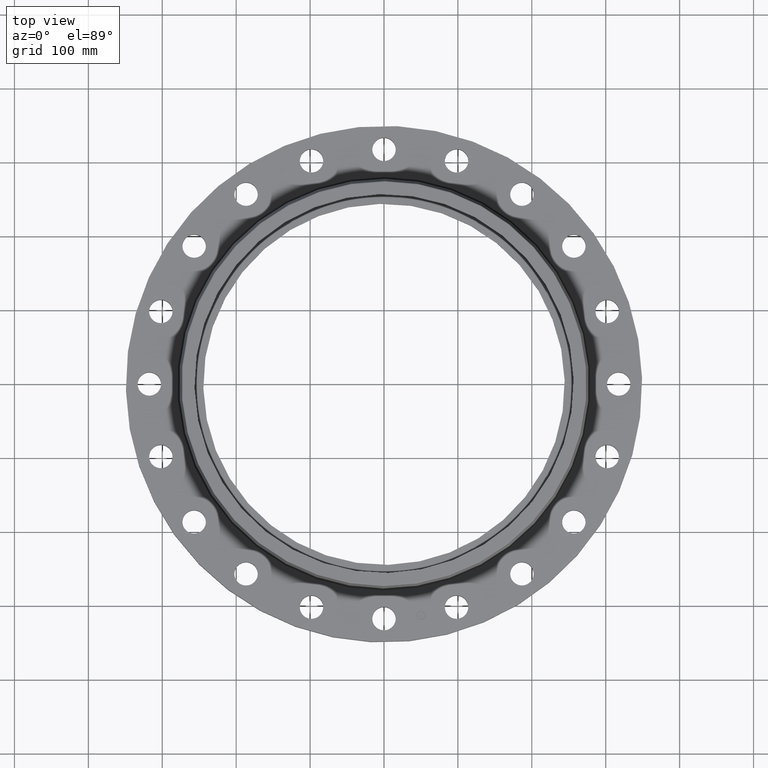
[diagram: clean part render]
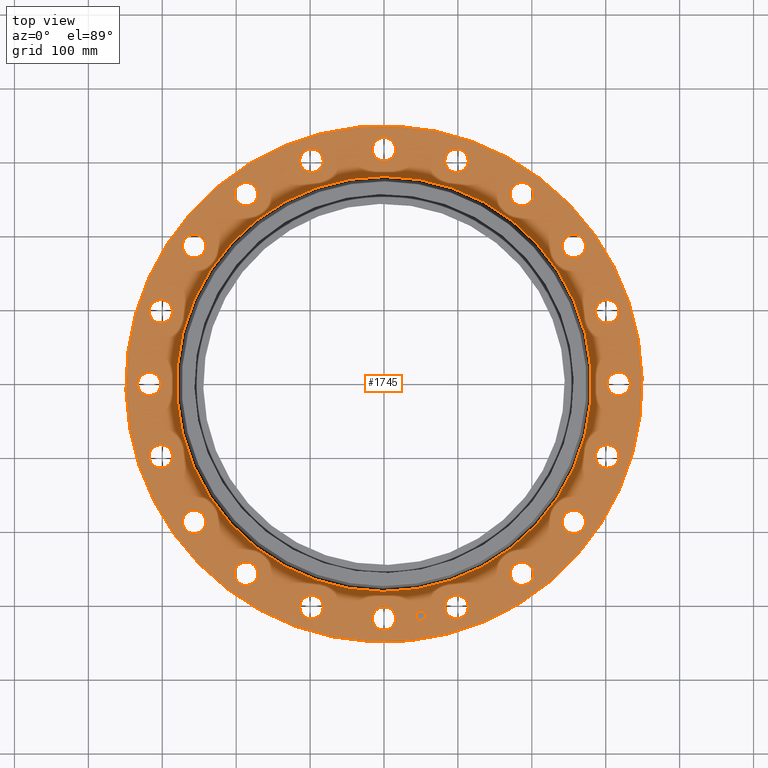
[diagram: same view with one face highlighted and labeled with its STEP entity id]
A machine part, top view. The second image highlights one B-rep face of the part: STEP entity #1745.
In plain terms, the highlighted planar face has unit normal (0, 0, -1).
Its self-contained STEP definition (entity closure, byte-faithful):
#545=AXIS2_PLACEMENT_3D('Circle Axis2P3D',#543,#544,$) ;
#564=AXIS2_PLACEMENT_3D('Circle Axis2P3D',#562,#563,$) ;
#581=AXIS2_PLACEMENT_3D('Circle Axis2P3D',#579,#580,$) ;
#616=AXIS2_PLACEMENT_3D('Circle Axis2P3D',#614,#615,$) ;
#766=AXIS2_PLACEMENT_3D('Circle Axis2P3D',#764,#765,$) ;
#778=AXIS2_PLACEMENT_3D('Circle Axis2P3D',#776,#777,$) ;
#809=AXIS2_PLACEMENT_3D('Circle Axis2P3D',#807,#808,$) ;
#821=AXIS2_PLACEMENT_3D('Circle Axis2P3D',#819,#820,$) ;
#852=AXIS2_PLACEMENT_3D('Circle Axis2P3D',#850,#851,$) ;
#864=AXIS2_PLACEMENT_3D('Circle Axis2P3D',#862,#863,$) ;
#895=AXIS2_PLACEMENT_3D('Circle Axis2P3D',#893,#894,$) ;
#907=AXIS2_PLACEMENT_3D('Circle Axis2P3D',#905,#906,$) ;
#938=AXIS2_PLACEMENT_3D('Circle Axis2P3D',#936,#937,$) ;
#950=AXIS2_PLACEMENT_3D('Circle Axis2P3D',#948,#949,$) ;
#981=AXIS2_PLACEMENT_3D('Circle Axis2P3D',#979,#980,$) ;
#993=AXIS2_PLACEMENT_3D('Circle Axis2P3D',#991,#992,$) ;
#1024=AXIS2_PLACEMENT_3D('Circle Axis2P3D',#1022,#1023,$) ;
#1036=AXIS2_PLACEMENT_3D('Circle Axis2P3D',#1034,#1035,$) ;
#1067=AXIS2_PLACEMENT_3D('Circle Axis2P3D',#1065,#1066,$) ;
#1079=AXIS2_PLACEMENT_3D('Circle Axis2P3D',#1077,#1078,$) ;
#1110=AXIS2_PLACEMENT_3D('Circle Axis2P3D',#1108,#1109,$) ;
#1122=AXIS2_PLACEMENT_3D('Circle Axis2P3D',#1120,#1121,$) ;
#1153=AXIS2_PLACEMENT_3D('Circle Axis2P3D',#1151,#1152,$) ;
#1165=AXIS2_PLACEMENT_3D('Circle Axis2P3D',#1163,#1164,$) ;
#1196=AXIS2_PLACEMENT_3D('Circle Axis2P3D',#1194,#1195,$) ;
#1208=AXIS2_PLACEMENT_3D('Circle Axis2P3D',#1206,#1207,$) ;
#1239=AXIS2_PLACEMENT_3D('Circle Axis2P3D',#1237,#1238,$) ;
#1251=AXIS2_PLACEMENT_3D('Circle Axis2P3D',#1249,#1250,$) ;
#1282=AXIS2_PLACEMENT_3D('Circle Axis2P3D',#1280,#1281,$) ;
#1294=AXIS2_PLACEMENT_3D('Circle Axis2P3D',#1292,#1293,$) ;
#1325=AXIS2_PLACEMENT_3D('Circle Axis2P3D',#1323,#1324,$) ;
#1337=AXIS2_PLACEMENT_3D('Circle Axis2P3D',#1335,#1336,$) ;
#1368=AXIS2_PLACEMENT_3D('Circle Axis2P3D',#1366,#1367,$) ;
#1380=AXIS2_PLACEMENT_3D('Circle Axis2P3D',#1378,#1379,$) ;
#1411=AXIS2_PLACEMENT_3D('Circle Axis2P3D',#1409,#1410,$) ;
#1423=AXIS2_PLACEMENT_3D('Circle Axis2P3D',#1421,#1422,$) ;
#1454=AXIS2_PLACEMENT_3D('Circle Axis2P3D',#1452,#1453,$) ;
#1466=AXIS2_PLACEMENT_3D('Circle Axis2P3D',#1464,#1465,$) ;
#1497=AXIS2_PLACEMENT_3D('Circle Axis2P3D',#1495,#1496,$) ;
#1509=AXIS2_PLACEMENT_3D('Circle Axis2P3D',#1507,#1508,$) ;
#1540=AXIS2_PLACEMENT_3D('Circle Axis2P3D',#1538,#1539,$) ;
#1552=AXIS2_PLACEMENT_3D('Circle Axis2P3D',#1550,#1551,$) ;
#1583=AXIS2_PLACEMENT_3D('Circle Axis2P3D',#1581,#1582,$) ;
#1595=AXIS2_PLACEMENT_3D('Circle Axis2P3D',#1593,#1594,$) ;
#1637=AXIS2_PLACEMENT_3D('Plane Axis2P3D',#1634,#1635,#1636) ;
#1729=AXIS2_PLACEMENT_3D('Circle Axis2P3D',#1727,#1728,$) ;
#1738=AXIS2_PLACEMENT_3D('Circle Axis2P3D',#1736,#1737,$) ;
#540=CARTESIAN_POINT('Vertex',(-6.59210115583,-12.066760226,1.62000000001)) ;
#543=CARTESIAN_POINT('Axis2P3D Location',(0.,0.,1.62000000001)) ;
#547=CARTESIAN_POINT('Vertex',(6.59210115583,12.066760226,1.62000000001)) ;
#562=CARTESIAN_POINT('Axis2P3D Location',(0.,0.,1.62000000001)) ;
#579=CARTESIAN_POINT('Axis2P3D Location',(0.,0.,1.62000000001)) ;
#583=CARTESIAN_POINT('Vertex',(5.29781807222,9.69759093307,1.62000000001)) ;
#585=CARTESIAN_POINT('Vertex',(-5.29781807222,-9.69759093307,1.62000000001)) ;
#614=CARTESIAN_POINT('Axis2P3D Location',(0.,0.,1.62000000001)) ;
#754=CARTESIAN_POINT('Vertex',(12.5024447369,3.74722939409,1.62000000001)) ;
#761=CARTESIAN_POINT('Vertex',(11.2739681706,3.97819546531,1.62000000001)) ;
#764=CARTESIAN_POINT('Axis2P3D Location',(11.8882064537,3.8627124297,1.62000000001)) ;
#776=CARTESIAN_POINT('Axis2P3D Location',(11.8882064537,3.8627124297,1.62000000001)) ;
#797=CARTESIAN_POINT('Vertex',(10.732573972,7.42729482824,1.62000000001)) ;
#804=CARTESIAN_POINT('Vertex',(9.49285088741,7.26733647913,1.62000000001)) ;
#807=CARTESIAN_POINT('Axis2P3D Location',(10.1127124297,7.34731565369,1.62000000001)) ;
#819=CARTESIAN_POINT('Axis2P3D Location',(10.1127124297,7.34731565369,1.62000000001)) ;
#840=CARTESIAN_POINT('Vertex',(7.91212408857,10.3803248956,1.62000000001)) ;
#847=CARTESIAN_POINT('Vertex',(6.7825072188,9.84509996387,1.62000000001)) ;
#850=CARTESIAN_POINT('Axis2P3D Location',(7.34731565369,10.1127124297,1.62000000001)) ;
#862=CARTESIAN_POINT('Axis2P3D Location',(7.34731565369,10.1127124297,1.62000000001)) ;
#883=CARTESIAN_POINT('Vertex',(4.3171803723,12.3172564382,1.62000000001)) ;
#890=CARTESIAN_POINT('Vertex',(3.4082444871,11.4591564693,1.62000000001)) ;
#893=CARTESIAN_POINT('Axis2P3D Location',(3.8627124297,11.8882064537,1.62000000001)) ;
#905=CARTESIAN_POINT('Axis2P3D Location',(3.8627124297,11.8882064537,1.62000000001)) ;
#926=CARTESIAN_POINT('Vertex',(0.299640961629,13.0484891012,1.62000000001)) ;
#933=CARTESIAN_POINT('Vertex',(-0.299640961629,11.9515108989,1.62000000001)) ;
#936=CARTESIAN_POINT('Axis2P3D Location',(-1.33984429947E-014,12.5000000001,1.62000000001)) ;
#948=CARTESIAN_POINT('Axis2P3D Location',(-1.33984429947E-014,12.5000000001,1.62000000001)) ;
#969=CARTESIAN_POINT('Vertex',(-3.74722939409,12.5024447369,1.62000000001)) ;
#976=CARTESIAN_POINT('Vertex',(-3.97819546531,11.2739681706,1.62000000001)) ;
#979=CARTESIAN_POINT('Axis2P3D Location',(-3.8627124297,11.8882064537,1.62000000001)) ;
#991=CARTESIAN_POINT('Axis2P3D Location',(-3.8627124297,11.8882064537,1.62000000001)) ;
#1012=CARTESIAN_POINT('Vertex',(-7.42729482824,10.732573972,1.62000000001)) ;
#1019=CARTESIAN_POINT('Vertex',(-7.26733647913,9.49285088741,1.62000000001)) ;
#1022=CARTESIAN_POINT('Axis2P3D Location',(-7.34731565369,10.1127124297,1.62000000001)) ;
#1034=CARTESIAN_POINT('Axis2P3D Location',(-7.34731565369,10.1127124297,1.62000000001)) ;
#1055=CARTESIAN_POINT('Vertex',(-10.3803248956,7.91212408857,1.62000000001)) ;
#1062=CARTESIAN_POINT('Vertex',(-9.84509996387,6.7825072188,1.62000000001)) ;
#1065=CARTESIAN_POINT('Axis2P3D Location',(-10.1127124297,7.34731565369,1.62000000001)) ;
#1077=CARTESIAN_POINT('Axis2P3D Location',(-10.1127124297,7.34731565369,1.62000000001)) ;
#1098=CARTESIAN_POINT('Vertex',(-12.3172564382,4.3171803723,1.62000000001)) ;
#1105=CARTESIAN_POINT('Vertex',(-11.4591564693,3.4082444871,1.62000000001)) ;
#1108=CARTESIAN_POINT('Axis2P3D Location',(-11.8882064537,3.8627124297,1.62000000001)) ;
#1120=CARTESIAN_POINT('Axis2P3D Location',(-11.8882064537,3.8627124297,1.62000000001)) ;
#1141=CARTESIAN_POINT('Vertex',(-13.0484891012,0.299640961629,1.62000000001)) ;
#1148=CARTESIAN_POINT('Vertex',(-11.9515108989,-0.299640961629,1.62000000001)) ;
#1151=CARTESIAN_POINT('Axis2P3D Location',(-12.5000000001,-7.08192362209E-015,1.62000000001)) ;
#1163=CARTESIAN_POINT('Axis2P3D Location',(-12.5000000001,-7.08192362209E-015,1.62000000001)) ;
#1184=CARTESIAN_POINT('Vertex',(-12.5024447369,-3.74722939409,1.62000000001)) ;
#1191=CARTESIAN_POINT('Vertex',(-11.2739681706,-3.97819546531,1.62000000001)) ;
#1194=CARTESIAN_POINT('Axis2P3D Location',(-11.8882064537,-3.8627124297,1.62000000001)) ;
#1206=CARTESIAN_POINT('Axis2P3D Location',(-11.8882064537,-3.8627124297,1.62000000001)) ;
#1227=CARTESIAN_POINT('Vertex',(-10.732573972,-7.42729482824,1.62000000001)) ;
#1234=CARTESIAN_POINT('Vertex',(-9.49285088741,-7.26733647913,1.62000000001)) ;
#1237=CARTESIAN_POINT('Axis2P3D Location',(-10.1127124297,-7.34731565369,1.62000000001)) ;
#1249=CARTESIAN_POINT('Axis2P3D Location',(-10.1127124297,-7.34731565369,1.62000000001)) ;
#1270=CARTESIAN_POINT('Vertex',(-7.91212408857,-10.3803248956,1.62000000001)) ;
#1277=CARTESIAN_POINT('Vertex',(-6.7825072188,-9.84509996387,1.62000000001)) ;
#1280=CARTESIAN_POINT('Axis2P3D Location',(-7.34731565369,-10.1127124297,1.62000000001)) ;
#1292=CARTESIAN_POINT('Axis2P3D Location',(-7.34731565369,-10.1127124297,1.62000000001)) ;
#1313=CARTESIAN_POINT('Vertex',(-4.3171803723,-12.3172564382,1.62000000001)) ;
#1320=CARTESIAN_POINT('Vertex',(-3.4082444871,-11.4591564693,1.62000000001)) ;
#1323=CARTESIAN_POINT('Axis2P3D Location',(-3.8627124297,-11.8882064537,1.62000000001)) ;
#1335=CARTESIAN_POINT('Axis2P3D Location',(-3.8627124297,-11.8882064537,1.62000000001)) ;
#1356=CARTESIAN_POINT('Vertex',(-0.299640961629,-13.0484891012,1.62000000001)) ;
#1363=CARTESIAN_POINT('Vertex',(0.299640961629,-11.9515108989,1.62000000001)) ;
#1366=CARTESIAN_POINT('Axis2P3D Location',(1.30303193463E-015,-12.5000000001,1.62000000001)) ;
#1378=CARTESIAN_POINT('Axis2P3D Location',(1.30303193463E-015,-12.5000000001,1.62000000001)) ;
#1399=CARTESIAN_POINT('Vertex',(3.74722939409,-12.5024447369,1.62000000001)) ;
#1406=CARTESIAN_POINT('Vertex',(3.97819546531,-11.2739681706,1.62000000001)) ;
#1409=CARTESIAN_POINT('Axis2P3D Location',(3.8627124297,-11.8882064537,1.62000000001)) ;
#1421=CARTESIAN_POINT('Axis2P3D Location',(3.8627124297,-11.8882064537,1.62000000001)) ;
#1442=CARTESIAN_POINT('Vertex',(7.42729482824,-10.732573972,1.62000000001)) ;
#1449=CARTESIAN_POINT('Vertex',(7.26733647913,-9.49285088741,1.62000000001)) ;
#1452=CARTESIAN_POINT('Axis2P3D Location',(7.34731565369,-10.1127124297,1.62000000001)) ;
#1464=CARTESIAN_POINT('Axis2P3D Location',(7.34731565369,-10.1127124297,1.62000000001)) ;
#1485=CARTESIAN_POINT('Vertex',(10.3803248956,-7.91212408857,1.62000000001)) ;
#1492=CARTESIAN_POINT('Vertex',(9.84509996387,-6.7825072188,1.62000000001)) ;
#1495=CARTESIAN_POINT('Axis2P3D Location',(10.1127124297,-7.34731565369,1.62000000001)) ;
#1507=CARTESIAN_POINT('Axis2P3D Location',(10.1127124297,-7.34731565369,1.62000000001)) ;
#1528=CARTESIAN_POINT('Vertex',(12.3172564382,-4.3171803723,1.62000000001)) ;
#1535=CARTESIAN_POINT('Vertex',(11.4591564693,-3.4082444871,1.62000000001)) ;
#1538=CARTESIAN_POINT('Axis2P3D Location',(11.8882064537,-3.8627124297,1.62000000001)) ;
#1550=CARTESIAN_POINT('Axis2P3D Location',(11.8882064537,-3.8627124297,1.62000000001)) ;
#1571=CARTESIAN_POINT('Vertex',(11.9515108989,0.299640961629,1.62000000001)) ;
#1578=CARTESIAN_POINT('Vertex',(13.0484891012,-0.299640961629,1.62000000001)) ;
#1581=CARTESIAN_POINT('Axis2P3D Location',(12.5000000001,0.,1.62000000001)) ;
#1593=CARTESIAN_POINT('Axis2P3D Location',(12.5000000001,0.,1.62000000001)) ;
#1634=CARTESIAN_POINT('Axis2P3D Location',(0.,13.7500000001,1.62000000001)) ;
#1727=CARTESIAN_POINT('Axis2P3D Location',(1.95543081301,-12.3461042575,1.62000000001)) ;
#1731=CARTESIAN_POINT('Vertex',(2.19988367731,-12.3073867274,1.62000000001)) ;
#1733=CARTESIAN_POINT('Vertex',(1.71097794871,-12.3848217876,1.62000000001)) ;
#1736=CARTESIAN_POINT('Axis2P3D Location',(1.95543081301,-12.3461042575,1.62000000001)) ;
#544=DIRECTION('Axis2P3D Direction',(0.,0.,-0.0393700787402)) ;
#563=DIRECTION('Axis2P3D Direction',(0.,0.,-0.0393700787402)) ;
#580=DIRECTION('Axis2P3D Direction',(0.,0.,-0.0393700787402)) ;
#615=DIRECTION('Axis2P3D Direction',(0.,0.,-0.0393700787402)) ;
#765=DIRECTION('Axis2P3D Direction',(0.,0.,-0.0393700787402)) ;
#777=DIRECTION('Axis2P3D Direction',(0.,0.,-0.0393700787402)) ;
#808=DIRECTION('Axis2P3D Direction',(0.,0.,-0.0393700787402)) ;
#820=DIRECTION('Axis2P3D Direction',(0.,0.,-0.0393700787402)) ;
#851=DIRECTION('Axis2P3D Direction',(0.,0.,-0.0393700787402)) ;
#863=DIRECTION('Axis2P3D Direction',(0.,0.,-0.0393700787402)) ;
#894=DIRECTION('Axis2P3D Direction',(0.,0.,-0.0393700787402)) ;
#906=DIRECTION('Axis2P3D Direction',(0.,0.,-0.0393700787402)) ;
#937=DIRECTION('Axis2P3D Direction',(0.,0.,-0.0393700787402)) ;
#949=DIRECTION('Axis2P3D Direction',(0.,0.,-0.0393700787402)) ;
#980=DIRECTION('Axis2P3D Direction',(0.,0.,-0.0393700787402)) ;
#992=DIRECTION('Axis2P3D Direction',(0.,0.,-0.0393700787402)) ;
#1023=DIRECTION('Axis2P3D Direction',(0.,0.,-0.0393700787402)) ;
#1035=DIRECTION('Axis2P3D Direction',(0.,0.,-0.0393700787402)) ;
#1066=DIRECTION('Axis2P3D Direction',(0.,0.,-0.0393700787402)) ;
#1078=DIRECTION('Axis2P3D Direction',(0.,0.,-0.0393700787402)) ;
#1109=DIRECTION('Axis2P3D Direction',(0.,0.,-0.0393700787402)) ;
#1121=DIRECTION('Axis2P3D Direction',(0.,0.,-0.0393700787402)) ;
#1152=DIRECTION('Axis2P3D Direction',(-0.,0.,-0.0393700787402)) ;
#1164=DIRECTION('Axis2P3D Direction',(-0.,0.,-0.0393700787402)) ;
#1195=DIRECTION('Axis2P3D Direction',(-0.,0.,-0.0393700787402)) ;
#1207=DIRECTION('Axis2P3D Direction',(-0.,0.,-0.0393700787402)) ;
#1238=DIRECTION('Axis2P3D Direction',(-0.,0.,-0.0393700787402)) ;
#1250=DIRECTION('Axis2P3D Direction',(-0.,0.,-0.0393700787402)) ;
#1281=DIRECTION('Axis2P3D Direction',(-0.,0.,-0.0393700787402)) ;
#1293=DIRECTION('Axis2P3D Direction',(-0.,0.,-0.0393700787402)) ;
#1324=DIRECTION('Axis2P3D Direction',(-0.,0.,-0.0393700787402)) ;
#1336=DIRECTION('Axis2P3D Direction',(-0.,0.,-0.0393700787402)) ;
#1367=DIRECTION('Axis2P3D Direction',(0.,-0.,-0.0393700787402)) ;
#1379=DIRECTION('Axis2P3D Direction',(0.,-0.,-0.0393700787402)) ;
#1410=DIRECTION('Axis2P3D Direction',(0.,-0.,-0.0393700787402)) ;
#1422=DIRECTION('Axis2P3D Direction',(0.,-0.,-0.0393700787402)) ;
#1453=DIRECTION('Axis2P3D Direction',(0.,-0.,-0.0393700787402)) ;
#1465=DIRECTION('Axis2P3D Direction',(0.,-0.,-0.0393700787402)) ;
#1496=DIRECTION('Axis2P3D Direction',(0.,-0.,-0.0393700787402)) ;
#1508=DIRECTION('Axis2P3D Direction',(0.,-0.,-0.0393700787402)) ;
#1539=DIRECTION('Axis2P3D Direction',(0.,-0.,-0.0393700787402)) ;
#1551=DIRECTION('Axis2P3D Direction',(0.,-0.,-0.0393700787402)) ;
#1582=DIRECTION('Axis2P3D Direction',(0.,-0.,-0.0393700787402)) ;
#1594=DIRECTION('Axis2P3D Direction',(0.,-0.,-0.0393700787402)) ;
#1635=DIRECTION('Axis2P3D Direction',(0.,0.,-0.0393700787402)) ;
#1636=DIRECTION('Axis2P3D XDirection',(0.0393700787402,0.,0.)) ;
#1728=DIRECTION('Axis2P3D Direction',(0.,0.,-0.0393700787402)) ;
#1737=DIRECTION('Axis2P3D Direction',(0.,0.,-0.0393700787402)) ;
#1640=ORIENTED_EDGE('',*,*,#566,.F.) ;
#1641=ORIENTED_EDGE('',*,*,#549,.F.) ;
#1644=ORIENTED_EDGE('',*,*,#1585,.T.) ;
#1645=ORIENTED_EDGE('',*,*,#1597,.T.) ;
#1648=ORIENTED_EDGE('',*,*,#618,.T.) ;
#1649=ORIENTED_EDGE('',*,*,#587,.T.) ;
#1652=ORIENTED_EDGE('',*,*,#1542,.T.) ;
#1653=ORIENTED_EDGE('',*,*,#1554,.T.) ;
#1656=ORIENTED_EDGE('',*,*,#1499,.T.) ;
#1657=ORIENTED_EDGE('',*,*,#1511,.T.) ;
#1660=ORIENTED_EDGE('',*,*,#1456,.T.) ;
#1661=ORIENTED_EDGE('',*,*,#1468,.T.) ;
#1664=ORIENTED_EDGE('',*,*,#1413,.T.) ;
#1665=ORIENTED_EDGE('',*,*,#1425,.T.) ;
#1668=ORIENTED_EDGE('',*,*,#1370,.T.) ;
#1669=ORIENTED_EDGE('',*,*,#1382,.T.) ;
#1672=ORIENTED_EDGE('',*,*,#1327,.T.) ;
#1673=ORIENTED_EDGE('',*,*,#1339,.T.) ;
#1676=ORIENTED_EDGE('',*,*,#1284,.T.) ;
#1677=ORIENTED_EDGE('',*,*,#1296,.T.) ;
#1680=ORIENTED_EDGE('',*,*,#1241,.T.) ;
#1681=ORIENTED_EDGE('',*,*,#1253,.T.) ;
#1684=ORIENTED_EDGE('',*,*,#1198,.T.) ;
#1685=ORIENTED_EDGE('',*,*,#1210,.T.) ;
#1688=ORIENTED_EDGE('',*,*,#1155,.T.) ;
#1689=ORIENTED_EDGE('',*,*,#1167,.T.) ;
#1692=ORIENTED_EDGE('',*,*,#1112,.T.) ;
#1693=ORIENTED_EDGE('',*,*,#1124,.T.) ;
#1696=ORIENTED_EDGE('',*,*,#1069,.T.) ;
#1697=ORIENTED_EDGE('',*,*,#1081,.T.) ;
#1700=ORIENTED_EDGE('',*,*,#1026,.T.) ;
#1701=ORIENTED_EDGE('',*,*,#1038,.T.) ;
#1704=ORIENTED_EDGE('',*,*,#983,.T.) ;
#1705=ORIENTED_EDGE('',*,*,#995,.T.) ;
#1708=ORIENTED_EDGE('',*,*,#940,.T.) ;
#1709=ORIENTED_EDGE('',*,*,#952,.T.) ;
#1712=ORIENTED_EDGE('',*,*,#897,.T.) ;
#1713=ORIENTED_EDGE('',*,*,#909,.T.) ;
#1716=ORIENTED_EDGE('',*,*,#854,.T.) ;
#1717=ORIENTED_EDGE('',*,*,#866,.T.) ;
#1720=ORIENTED_EDGE('',*,*,#811,.T.) ;
#1721=ORIENTED_EDGE('',*,*,#823,.T.) ;
#1724=ORIENTED_EDGE('',*,*,#768,.T.) ;
#1725=ORIENTED_EDGE('',*,*,#780,.T.) ;
#1742=ORIENTED_EDGE('',*,*,#1735,.T.) ;
#1743=ORIENTED_EDGE('',*,*,#1740,.T.) ;
#1646=FACE_BOUND('',#1643,.T.) ;
#1650=FACE_BOUND('',#1647,.T.) ;
#1654=FACE_BOUND('',#1651,.T.) ;
#1658=FACE_BOUND('',#1655,.T.) ;
#1662=FACE_BOUND('',#1659,.T.) ;
#1666=FACE_BOUND('',#1663,.T.) ;
#1670=FACE_BOUND('',#1667,.T.) ;
#1674=FACE_BOUND('',#1671,.T.) ;
#1678=FACE_BOUND('',#1675,.T.) ;
#1682=FACE_BOUND('',#1679,.T.) ;
#1686=FACE_BOUND('',#1683,.T.) ;
#1690=FACE_BOUND('',#1687,.T.) ;
#1694=FACE_BOUND('',#1691,.T.) ;
#1698=FACE_BOUND('',#1695,.T.) ;
#1702=FACE_BOUND('',#1699,.T.) ;
#1706=FACE_BOUND('',#1703,.T.) ;
#1710=FACE_BOUND('',#1707,.T.) ;
#1714=FACE_BOUND('',#1711,.T.) ;
#1718=FACE_BOUND('',#1715,.T.) ;
#1722=FACE_BOUND('',#1719,.T.) ;
#1726=FACE_BOUND('',#1723,.T.) ;
#1744=FACE_BOUND('',#1741,.T.) ;
#1745=ADVANCED_FACE('PartBody',(#1642,#1646,#1650,#1654,#1658,#1662,#1666,#1670,#1674,#1678,#1682,#1686,#1690,#1694,#1698,#1702,#1706,#1710,#1714,#1718,#1722,#1726,#1744),#1638,.F.) ;
#546=CIRCLE('generated circle',#545,13.7500000001) ;
#565=CIRCLE('generated circle',#564,13.7500000001) ;
#582=CIRCLE('generated circle',#581,11.0503459779) ;
#617=CIRCLE('generated circle',#616,11.0503459779) ;
#767=CIRCLE('generated circle',#766,0.625000000003) ;
#779=CIRCLE('generated circle',#778,0.625000000003) ;
#810=CIRCLE('generated circle',#809,0.625000000003) ;
#822=CIRCLE('generated circle',#821,0.625000000003) ;
#853=CIRCLE('generated circle',#852,0.625000000003) ;
#865=CIRCLE('generated circle',#864,0.625000000003) ;
#896=CIRCLE('generated circle',#895,0.625000000002) ;
#908=CIRCLE('generated circle',#907,0.625000000002) ;
#939=CIRCLE('generated circle',#938,0.625000000002) ;
#951=CIRCLE('generated circle',#950,0.625000000002) ;
#982=CIRCLE('generated circle',#981,0.625000000003) ;
#994=CIRCLE('generated circle',#993,0.625000000003) ;
#1025=CIRCLE('generated circle',#1024,0.625000000003) ;
#1037=CIRCLE('generated circle',#1036,0.625000000003) ;
#1068=CIRCLE('generated circle',#1067,0.625000000003) ;
#1080=CIRCLE('generated circle',#1079,0.625000000003) ;
#1111=CIRCLE('generated circle',#1110,0.625000000002) ;
#1123=CIRCLE('generated circle',#1122,0.625000000002) ;
#1154=CIRCLE('generated circle',#1153,0.625000000003) ;
#1166=CIRCLE('generated circle',#1165,0.625000000003) ;
#1197=CIRCLE('generated circle',#1196,0.625000000002) ;
#1209=CIRCLE('generated circle',#1208,0.625000000002) ;
#1240=CIRCLE('generated circle',#1239,0.625000000003) ;
#1252=CIRCLE('generated circle',#1251,0.625000000003) ;
#1283=CIRCLE('generated circle',#1282,0.625000000003) ;
#1295=CIRCLE('generated circle',#1294,0.625000000003) ;
#1326=CIRCLE('generated circle',#1325,0.625000000002) ;
#1338=CIRCLE('generated circle',#1337,0.625000000002) ;
#1369=CIRCLE('generated circle',#1368,0.625000000002) ;
#1381=CIRCLE('generated circle',#1380,0.625000000002) ;
#1412=CIRCLE('generated circle',#1411,0.625000000002) ;
#1424=CIRCLE('generated circle',#1423,0.625000000002) ;
#1455=CIRCLE('generated circle',#1454,0.625000000003) ;
#1467=CIRCLE('generated circle',#1466,0.625000000003) ;
#1498=CIRCLE('generated circle',#1497,0.625000000003) ;
#1510=CIRCLE('generated circle',#1509,0.625000000003) ;
#1541=CIRCLE('generated circle',#1540,0.625000000002) ;
#1553=CIRCLE('generated circle',#1552,0.625000000002) ;
#1584=CIRCLE('generated circle',#1583,0.625000000002) ;
#1596=CIRCLE('generated circle',#1595,0.625000000002) ;
#1730=CIRCLE('generated circle',#1729,0.247500000001) ;
#1739=CIRCLE('generated circle',#1738,0.247500000001) ;
#549=EDGE_CURVE('',#541,#548,#546,.T.) ;
#566=EDGE_CURVE('',#548,#541,#565,.T.) ;
#587=EDGE_CURVE('',#584,#586,#582,.T.) ;
#618=EDGE_CURVE('',#586,#584,#617,.T.) ;
#768=EDGE_CURVE('',#755,#762,#767,.T.) ;
#780=EDGE_CURVE('',#762,#755,#779,.T.) ;
#811=EDGE_CURVE('',#798,#805,#810,.T.) ;
#823=EDGE_CURVE('',#805,#798,#822,.T.) ;
#854=EDGE_CURVE('',#841,#848,#853,.T.) ;
#866=EDGE_CURVE('',#848,#841,#865,.T.) ;
#897=EDGE_CURVE('',#884,#891,#896,.T.) ;
#909=EDGE_CURVE('',#891,#884,#908,.T.) ;
#940=EDGE_CURVE('',#927,#934,#939,.T.) ;
#952=EDGE_CURVE('',#934,#927,#951,.T.) ;
#983=EDGE_CURVE('',#970,#977,#982,.T.) ;
#995=EDGE_CURVE('',#977,#970,#994,.T.) ;
#1026=EDGE_CURVE('',#1013,#1020,#1025,.T.) ;
#1038=EDGE_CURVE('',#1020,#1013,#1037,.T.) ;
#1069=EDGE_CURVE('',#1056,#1063,#1068,.T.) ;
#1081=EDGE_CURVE('',#1063,#1056,#1080,.T.) ;
#1112=EDGE_CURVE('',#1099,#1106,#1111,.T.) ;
#1124=EDGE_CURVE('',#1106,#1099,#1123,.T.) ;
#1155=EDGE_CURVE('',#1142,#1149,#1154,.T.) ;
#1167=EDGE_CURVE('',#1149,#1142,#1166,.T.) ;
#1198=EDGE_CURVE('',#1185,#1192,#1197,.T.) ;
#1210=EDGE_CURVE('',#1192,#1185,#1209,.T.) ;
#1241=EDGE_CURVE('',#1228,#1235,#1240,.T.) ;
#1253=EDGE_CURVE('',#1235,#1228,#1252,.T.) ;
#1284=EDGE_CURVE('',#1271,#1278,#1283,.T.) ;
#1296=EDGE_CURVE('',#1278,#1271,#1295,.T.) ;
#1327=EDGE_CURVE('',#1314,#1321,#1326,.T.) ;
#1339=EDGE_CURVE('',#1321,#1314,#1338,.T.) ;
#1370=EDGE_CURVE('',#1357,#1364,#1369,.T.) ;
#1382=EDGE_CURVE('',#1364,#1357,#1381,.T.) ;
#1413=EDGE_CURVE('',#1400,#1407,#1412,.T.) ;
#1425=EDGE_CURVE('',#1407,#1400,#1424,.T.) ;
#1456=EDGE_CURVE('',#1443,#1450,#1455,.T.) ;
#1468=EDGE_CURVE('',#1450,#1443,#1467,.T.) ;
#1499=EDGE_CURVE('',#1486,#1493,#1498,.T.) ;
#1511=EDGE_CURVE('',#1493,#1486,#1510,.T.) ;
#1542=EDGE_CURVE('',#1529,#1536,#1541,.T.) ;
#1554=EDGE_CURVE('',#1536,#1529,#1553,.T.) ;
#1585=EDGE_CURVE('',#1572,#1579,#1584,.T.) ;
#1597=EDGE_CURVE('',#1579,#1572,#1596,.T.) ;
#1735=EDGE_CURVE('',#1732,#1734,#1730,.T.) ;
#1740=EDGE_CURVE('',#1734,#1732,#1739,.T.) ;
#1639=EDGE_LOOP('',(#1640,#1641)) ;
#1643=EDGE_LOOP('',(#1644,#1645)) ;
#1647=EDGE_LOOP('',(#1648,#1649)) ;
#1651=EDGE_LOOP('',(#1652,#1653)) ;
#1655=EDGE_LOOP('',(#1656,#1657)) ;
#1659=EDGE_LOOP('',(#1660,#1661)) ;
#1663=EDGE_LOOP('',(#1664,#1665)) ;
#1667=EDGE_LOOP('',(#1668,#1669)) ;
#1671=EDGE_LOOP('',(#1672,#1673)) ;
#1675=EDGE_LOOP('',(#1676,#1677)) ;
#1679=EDGE_LOOP('',(#1680,#1681)) ;
#1683=EDGE_LOOP('',(#1684,#1685)) ;
#1687=EDGE_LOOP('',(#1688,#1689)) ;
#1691=EDGE_LOOP('',(#1692,#1693)) ;
#1695=EDGE_LOOP('',(#1696,#1697)) ;
#1699=EDGE_LOOP('',(#1700,#1701)) ;
#1703=EDGE_LOOP('',(#1704,#1705)) ;
#1707=EDGE_LOOP('',(#1708,#1709)) ;
#1711=EDGE_LOOP('',(#1712,#1713)) ;
#1715=EDGE_LOOP('',(#1716,#1717)) ;
#1719=EDGE_LOOP('',(#1720,#1721)) ;
#1723=EDGE_LOOP('',(#1724,#1725)) ;
#1741=EDGE_LOOP('',(#1742,#1743)) ;
#1642=FACE_OUTER_BOUND('',#1639,.T.) ;
#1638=PLANE('',#1637) ;
#541=VERTEX_POINT('',#540) ;
#548=VERTEX_POINT('',#547) ;
#584=VERTEX_POINT('',#583) ;
#586=VERTEX_POINT('',#585) ;
#755=VERTEX_POINT('',#754) ;
#762=VERTEX_POINT('',#761) ;
#798=VERTEX_POINT('',#797) ;
#805=VERTEX_POINT('',#804) ;
#841=VERTEX_POINT('',#840) ;
#848=VERTEX_POINT('',#847) ;
#884=VERTEX_POINT('',#883) ;
#891=VERTEX_POINT('',#890) ;
#927=VERTEX_POINT('',#926) ;
#934=VERTEX_POINT('',#933) ;
#970=VERTEX_POINT('',#969) ;
#977=VERTEX_POINT('',#976) ;
#1013=VERTEX_POINT('',#1012) ;
#1020=VERTEX_POINT('',#1019) ;
#1056=VERTEX_POINT('',#1055) ;
#1063=VERTEX_POINT('',#1062) ;
#1099=VERTEX_POINT('',#1098) ;
#1106=VERTEX_POINT('',#1105) ;
#1142=VERTEX_POINT('',#1141) ;
#1149=VERTEX_POINT('',#1148) ;
#1185=VERTEX_POINT('',#1184) ;
#1192=VERTEX_POINT('',#1191) ;
#1228=VERTEX_POINT('',#1227) ;
#1235=VERTEX_POINT('',#1234) ;
#1271=VERTEX_POINT('',#1270) ;
#1278=VERTEX_POINT('',#1277) ;
#1314=VERTEX_POINT('',#1313) ;
#1321=VERTEX_POINT('',#1320) ;
#1357=VERTEX_POINT('',#1356) ;
#1364=VERTEX_POINT('',#1363) ;
#1400=VERTEX_POINT('',#1399) ;
#1407=VERTEX_POINT('',#1406) ;
#1443=VERTEX_POINT('',#1442) ;
#1450=VERTEX_POINT('',#1449) ;
#1486=VERTEX_POINT('',#1485) ;
#1493=VERTEX_POINT('',#1492) ;
#1529=VERTEX_POINT('',#1528) ;
#1536=VERTEX_POINT('',#1535) ;
#1572=VERTEX_POINT('',#1571) ;
#1579=VERTEX_POINT('',#1578) ;
#1732=VERTEX_POINT('',#1731) ;
#1734=VERTEX_POINT('',#1733) ;